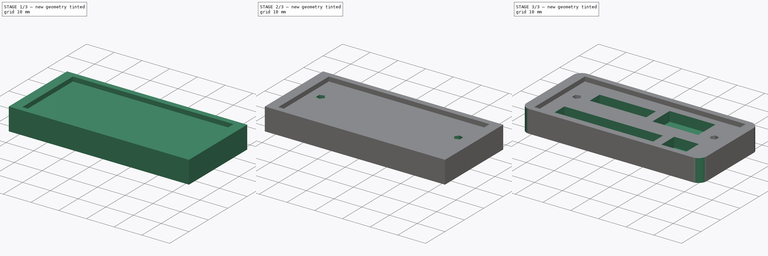
[diagram: build sequence overview — one tinted view per stage of 3, left to right]
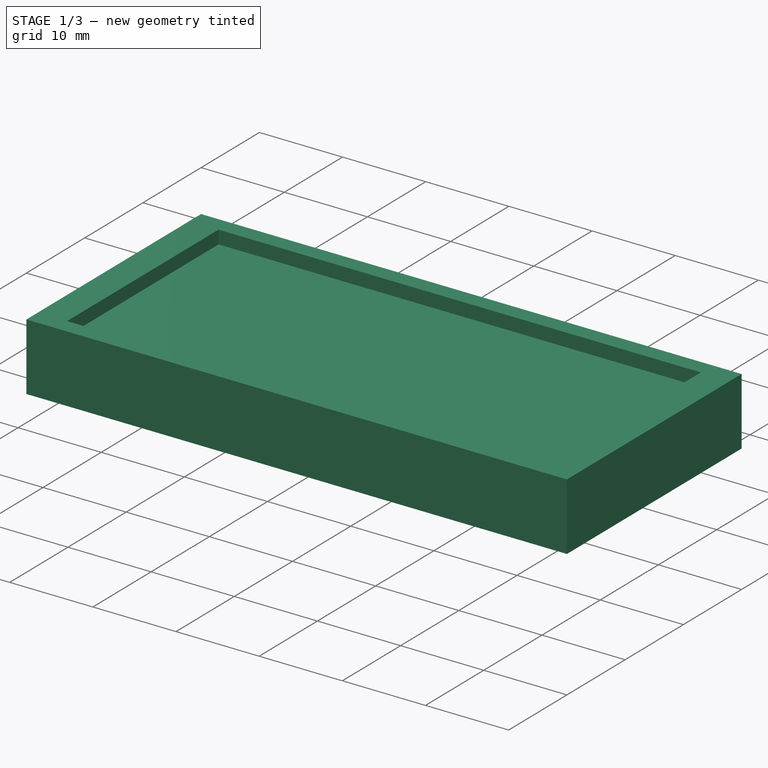
[diagram: stage 1 of 3 — iso view after this stage's code; geometry added in this stage tinted green]
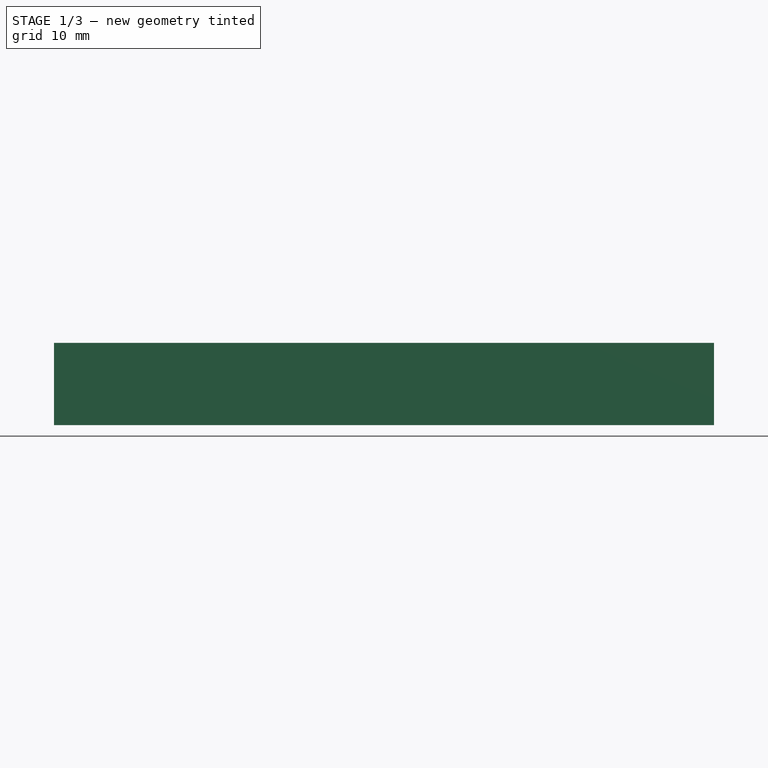
[diagram: stage 1 of 3 — front view after this stage's code; geometry added in this stage tinted green]
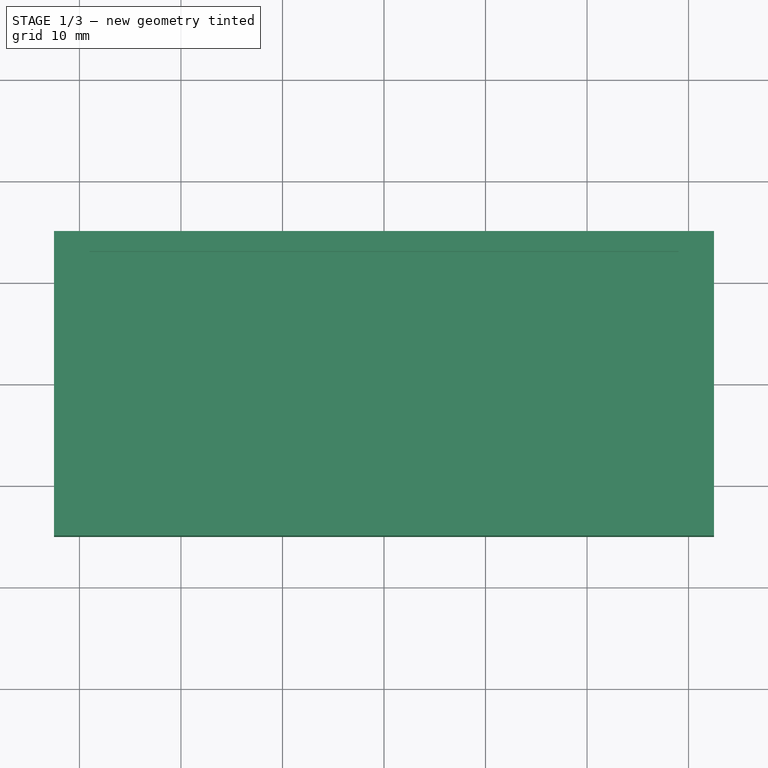
[diagram: stage 1 of 3 — top view after this stage's code; geometry added in this stage tinted green]
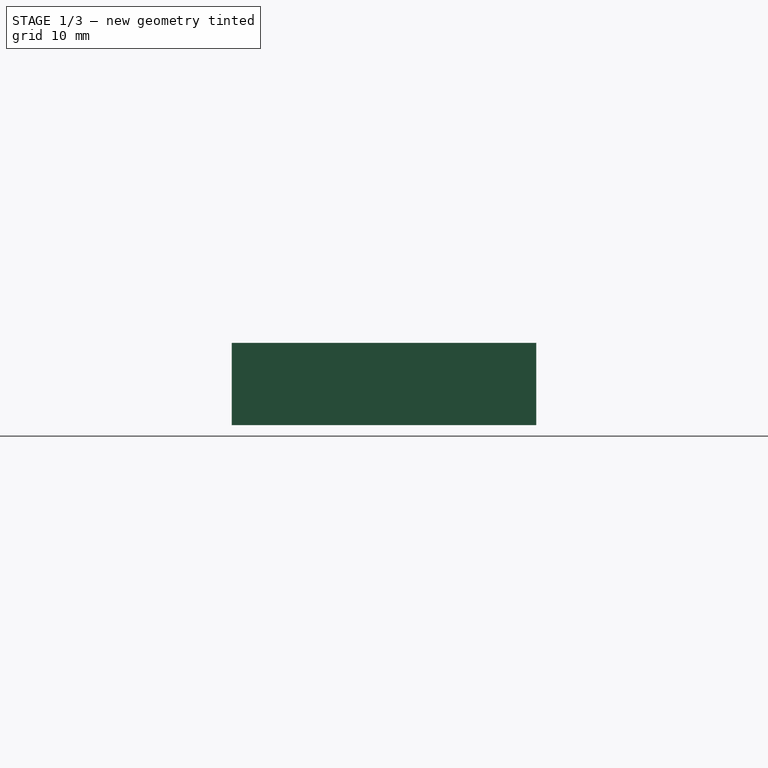
[diagram: stage 1 of 3 — right view after this stage's code; geometry added in this stage tinted green]
FCSTD DOCUMENT  (FreeCAD 0.19R24291 (Git))
Label: case
License: All rights reserved
LicenseURL: http://en.wikipedia.org/wiki/All_rights_reserved
objects: Sketcher::SketchObject×4, PartDesign::Pocket×3, PartDesign::Plane×2, PartDesign::Pad×1, Spreadsheet::Sheet×1, PartDesign::Fillet×1, PartDesign::Body×1
note: 17 computed .brp shape members not serialized (recipe doc carries the construction recipe); baked Part::Feature solids carry a one-line shape summary decoded from their .brp

FEATURE [Sketcher::SketchObject] Sketch  label="Outer_S"
  FullyConstrained = true
  MapMode = 5
  Support = -> [XY_Plane]
  sketch-geometry (4):
    g0: LineSegment StartX=-32.5 StartY=15 StartZ=0 EndX=32.5 EndY=15 EndZ=0
    g1: LineSegment StartX=32.5 StartY=15 StartZ=0 EndX=32.5 EndY=-15 EndZ=0
    g2: LineSegment StartX=32.5 StartY=-15 StartZ=0 EndX=-32.5 EndY=-15 EndZ=0
    g3: LineSegment StartX=-32.5 StartY=-15 StartZ=0 EndX=-32.5 EndY=15 EndZ=0
  constraints (10):
    c: Coincident(g0,g1)
    c: Coincident(g1,g2)
    c: Coincident(g2,g3)
    c: Coincident(g3,g0)
    c: Horizontal(g0)
    c: Vertical(g1)
    c: DistanceX(g0,g0) = 65  'width'
    c: DistanceY(g1,g1) = 30  'height'
    c: Symmetric(g2,g1,g-2)
    c: Symmetric(g0,g2,g-1)
FEATURE [PartDesign::Pad] Pad  label="Outer"
  Direction = (1,1,1)
  Length = 8.1
  Length2 = 100
  Profile = -> Sketch
  Type = 0
  expr: Length = <<dimensions>>.max_z_clearance + <<dimensions>>.pcb_thickness + 1mm
FEATURE [PartDesign::Plane] DatumPlane  label="OuterTop"
  AttachmentOffset = pos=(0,0,8.1) rot=(0,0,1;0rad)
  Length = 60
  MapMode = 5
  Placement = pos=(0,0,8.1) rot=(0,0,1;0rad)
  ResizeMode = 0
  Support = -> [XY_Plane]
  Width = 60
  expr: .AttachmentOffset.Base.z = <<Outer>>.Length
FEATURE [Sketcher::SketchObject] Sketch001  label="PcbPocket_S"
  FullyConstrained = true
  MapMode = 5
  Placement = pos=(0,0,8.1) rot=(0,0,1;0rad)
  Support = -> [DatumPlane]
  sketch-geometry (4):
    g0: LineSegment StartX=-29 StartY=13 StartZ=0 EndX=29 EndY=13 EndZ=0
    g1: LineSegment StartX=29 StartY=13 StartZ=0 EndX=29 EndY=-13 EndZ=0
    g2: LineSegment StartX=29 StartY=-13 StartZ=0 EndX=-29 EndY=-13 EndZ=0
    g3: LineSegment StartX=-29 StartY=-13 StartZ=0 EndX=-29 EndY=13 EndZ=0
  constraints (10):
    c: Coincident(g0,g1)
    c: Coincident(g1,g2)
    c: Coincident(g2,g3)
    c: Coincident(g3,g0)
    c: Horizontal(g0)
    c: Vertical(g1)
    c: Symmetric(g2,g1,g-2)
    c: Symmetric(g0,g2,g-1)
    c: DistanceX(g0,g0) = 58  'width'
    c: DistanceY(g1,g1) = 26  'height'
FEATURE [PartDesign::Pocket] Pocket  label="PcbPocket"
  BaseFeature = -> Pad
  Length = 1.6
  Length2 = 100
  Profile = -> Sketch001
  Type = 0
  expr: Length = <<dimensions>>.pcb_thickness
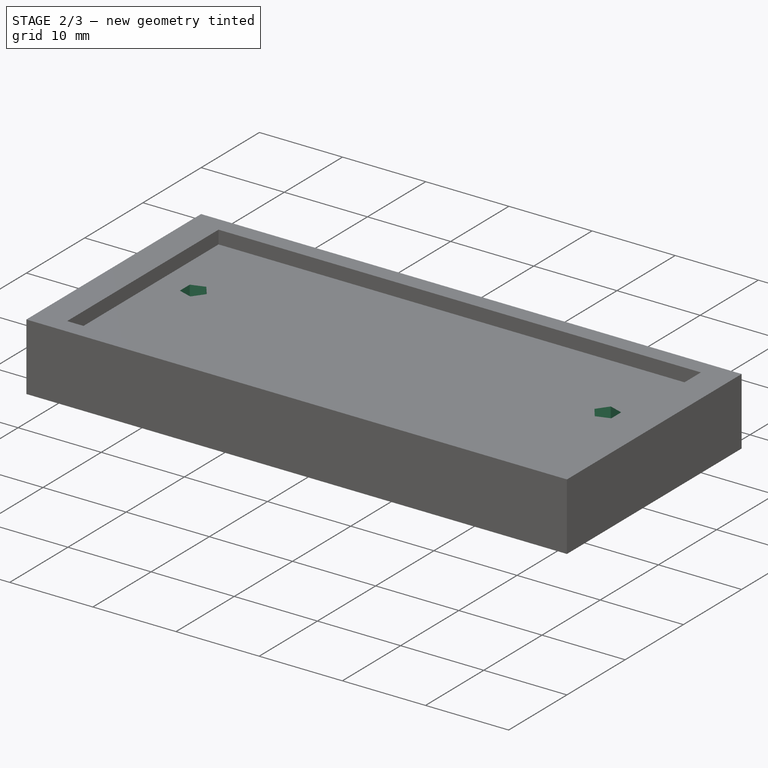
[diagram: stage 2 of 3 — iso view after this stage's code; geometry added in this stage tinted green]
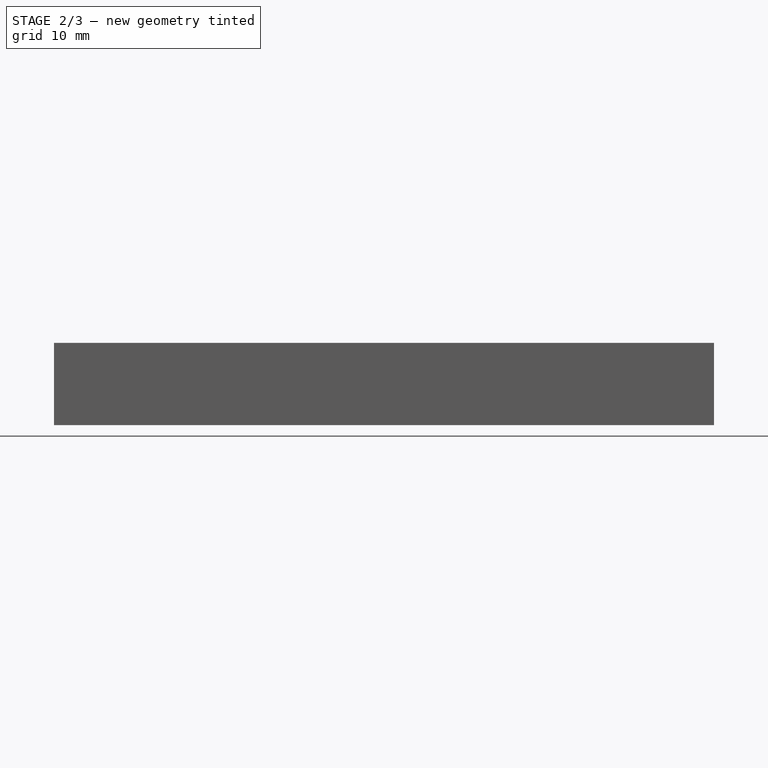
[diagram: stage 2 of 3 — front view after this stage's code; geometry added in this stage tinted green]
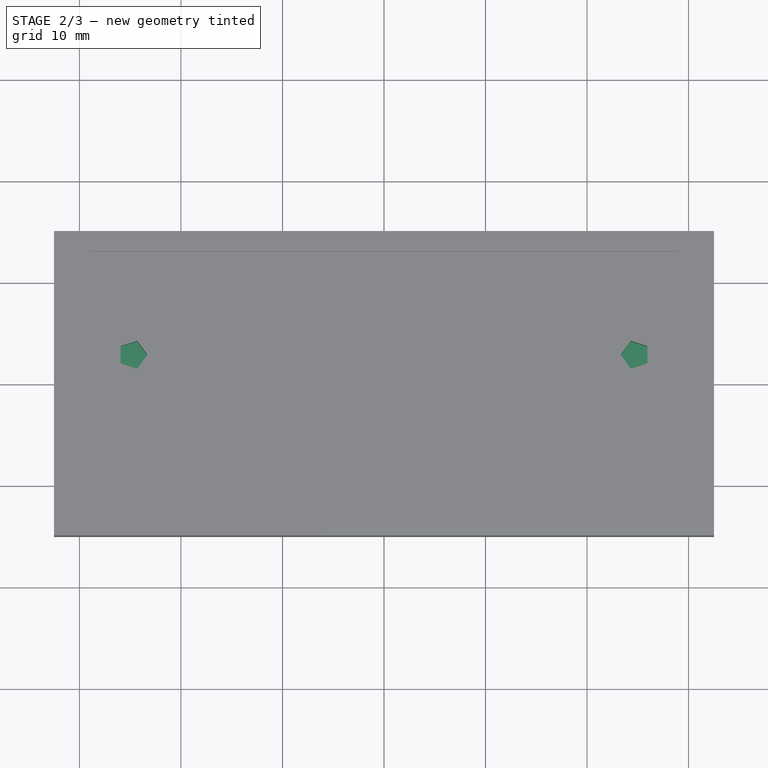
[diagram: stage 2 of 3 — top view after this stage's code; geometry added in this stage tinted green]
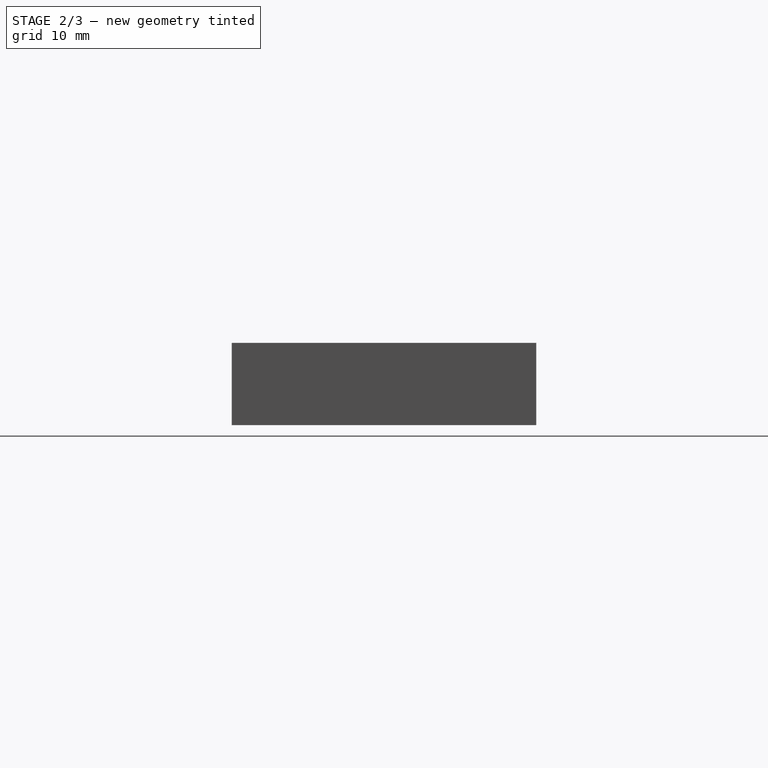
[diagram: stage 2 of 3 — right view after this stage's code; geometry added in this stage tinted green]
FEATURE [Sketcher::SketchObject] Sketch002  label="ScrewHoles_S"
  FullyConstrained = true
  MapMode = 5
  Placement = pos=(0,0,8.1) rot=(0,0,1;0rad)
  Support = -> [DatumPlane]
  expr: .Constraints.offset_y = <<PcbPocket_S>>.Constraints.height / 2 - 10.16mm
  sketch-geometry (14):
    g0: LineSegment StartX=-24.765 StartY=2.84 StartZ=0 EndX=24.765 EndY=2.84 EndZ=0
    g1: LineSegment StartX=0 StartY=2.84 StartZ=0 EndX=0 EndY=0 EndZ=0
    g2: LineSegment StartX=-23.315 StartY=2.84 StartZ=0 EndX=-24.3169 EndY=4.21903 EndZ=0
    g3: LineSegment StartX=-24.3169 StartY=4.21903 StartZ=0 EndX=-25.9381 EndY=3.69229 EndZ=0
    g4: LineSegment StartX=-25.9381 StartY=3.69229 StartZ=0 EndX=-25.9381 EndY=1.98771 EndZ=0
    g5: LineSegment StartX=-25.9381 StartY=1.98771 StartZ=0 EndX=-24.3169 EndY=1.46097 EndZ=0
    g6: LineSegment StartX=-24.3169 StartY=1.46097 StartZ=0 EndX=-23.315 EndY=2.84 EndZ=0
    g7: Circle CenterX=-24.765 CenterY=2.84 CenterZ=0 NormalX=0 NormalY=0 NormalZ=1 AngleXU=0 Radius=1.45
    g8: LineSegment StartX=23.315 StartY=2.84 StartZ=0 EndX=24.3169 EndY=1.46097 EndZ=0
    g9: LineSegment StartX=24.3169 StartY=1.46097 StartZ=0 EndX=25.9381 EndY=1.98771 EndZ=0
    g10: LineSegment StartX=25.9381 StartY=1.98771 StartZ=0 EndX=25.9381 EndY=3.69229 EndZ=0
    g11: LineSegment StartX=25.9381 StartY=3.69229 StartZ=0 EndX=24.3169 EndY=4.21903 EndZ=0
    g12: LineSegment StartX=24.3169 StartY=4.21903 StartZ=0 EndX=23.315 EndY=2.84 EndZ=0
    g13: Circle CenterX=24.765 CenterY=2.84 CenterZ=0 NormalX=0 NormalY=0 NormalZ=1 AngleXU=0 Radius=1.45
  constraints (34):
    c: Symmetric(g0,g0,g-2)
    c: DistanceX(g0,g0) = 49.53  'centres_x'
    c: Coincident(g1,g-1)
    c: Vertical(g1)
    c: DistanceY(g1,g1) = 2.84  'offset_y'
    c: PointOnObject(g1,g0)
    c: Coincident(g2,g3)
    c: Coincident(g3,g4)
    c: Coincident(g4,g5)
    c: Coincident(g5,g6)
    c: Coincident(g6,g2)
    c: Equal(g2, g3-g6) x4
    c: PointOnObject(g2,g7)
    c: PointOnObject(g3,g7)
    c: PointOnObject(g4,g7)
    c: PointOnObject(g5,g7)
    c: PointOnObject(g6,g7)
    c: Coincident(g7,g0)
    c: PointOnObject(g6,g0)
    c: Coincident(g8,g9)
    c: Coincident(g9,g10)
    c: Coincident(g10,g11)
    c: Coincident(g11,g12)
    c: Coincident(g12,g8)
    c: Equal(g8, g9-g12) x4
    c: PointOnObject(g8,g13)
    c: PointOnObject(g9,g13)
    c: PointOnObject(g10,g13)
    c: PointOnObject(g11,g13)
    c: PointOnObject(g12,g13)
    c: Coincident(g13,g0)
    c: PointOnObject(g12,g0)
    c: Equal(g13,g7)
    c: Diameter(g13) = 2.9  'diameter'
FEATURE [PartDesign::Pocket] Pocket001  label="ScrewHoles"
  BaseFeature = -> Pocket
  Length = 5.5
  Length2 = 100
  Profile = -> Sketch002
  Type = 0
  expr: Length = <<dimensions>>.screw_z_clearance
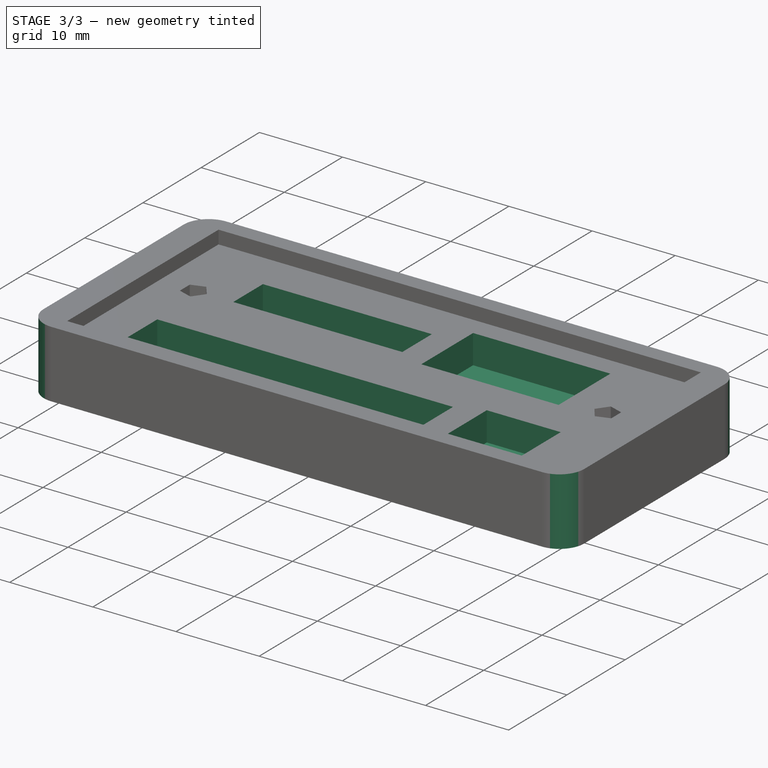
[diagram: stage 3 of 3 — iso view after this stage's code; geometry added in this stage tinted green]
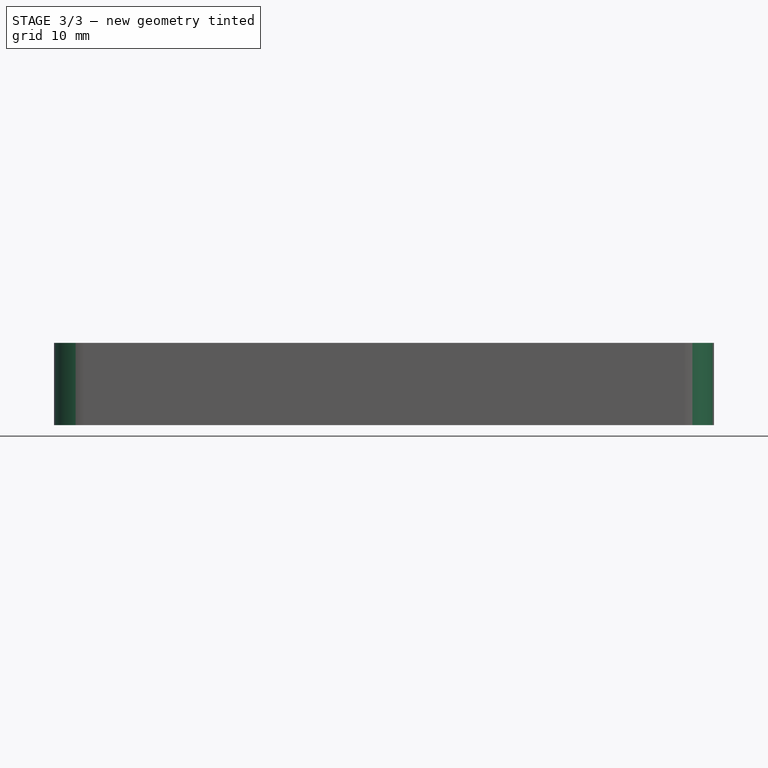
[diagram: stage 3 of 3 — front view after this stage's code; geometry added in this stage tinted green]
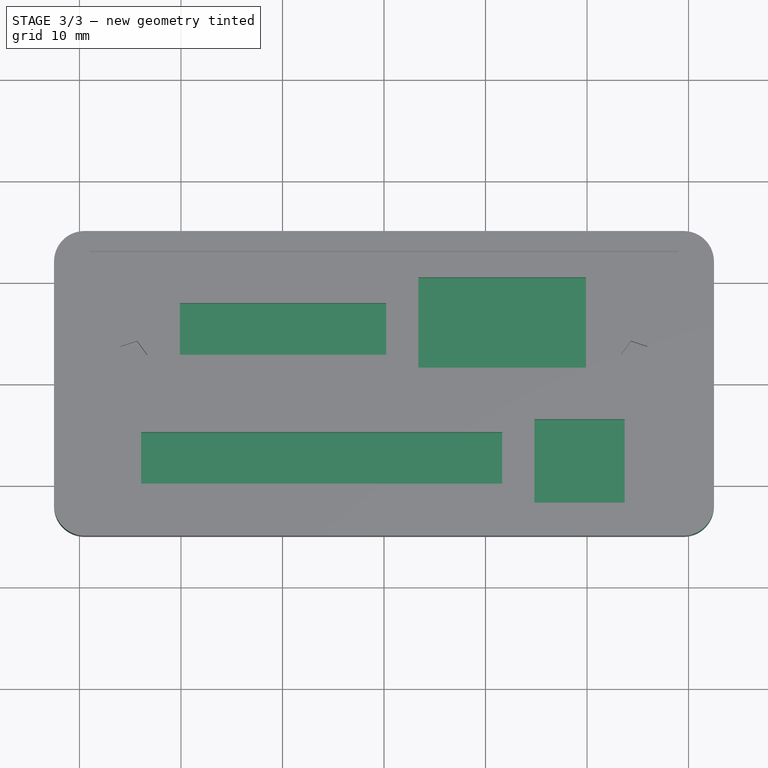
[diagram: stage 3 of 3 — top view after this stage's code; geometry added in this stage tinted green]
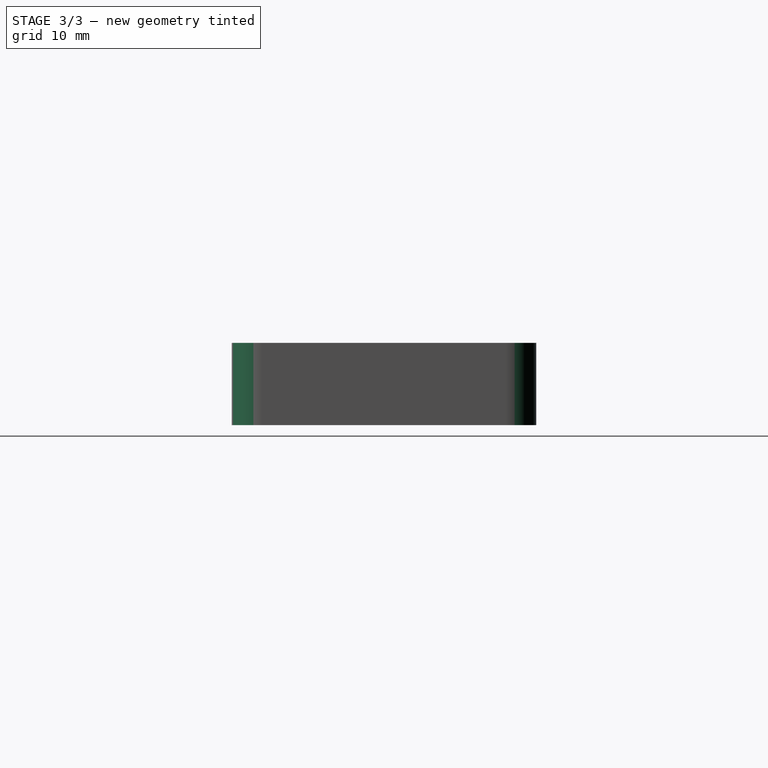
[diagram: stage 3 of 3 — right view after this stage's code; geometry added in this stage tinted green]
FEATURE [Spreadsheet::Sheet] Spreadsheet  label="dimensions"
  cells = A1=Pin clearance; B1(pin_z_clearance)==3.5mm; A2=Screw clearance; B2(screw_z_clearance)==5.5mm; B3(max_z_clearance)==max(B1; B2); A5=PCB thickness; B5(pcb_thickness)==1.6mm
FEATURE [PartDesign::Plane] DatumPlane001  label="PcbHeight"
  AttachmentOffset = pos=(0,0,6.5) rot=(0,0,1;0rad)
  Length = 60
  MapMode = 5
  Placement = pos=(0,0,6.5) rot=(0,0,1;0rad)
  ResizeMode = 0
  Support = -> [XY_Plane]
  Width = 60
  expr: .AttachmentOffset.Base.z = <<Outer>>.Length - <<dimensions>>.pcb_thickness
FEATURE [Sketcher::SketchObject] Sketch003  label="PinRecess_S"
  FullyConstrained = true
  MapMode = 5
  Placement = pos=(0,0,6.5) rot=(0,0,1;0rad)
  Support = -> [DatumPlane001]
  expr: .Constraints.width = Sketch001.Constraints[8]
  expr: .Constraints.height = Sketch001.Constraints[9]
  sketch-geometry (20):
    g0: LineSegment StartX=-20.11 StartY=7.92 StartZ=0 EndX=0.21 EndY=7.92 EndZ=0
    g1: LineSegment StartX=0.21 StartY=7.92 StartZ=0 EndX=0.21 EndY=2.84 EndZ=0
    g2: LineSegment StartX=0.21 StartY=2.84 StartZ=0 EndX=-20.11 EndY=2.84 EndZ=0
    g3: LineSegment StartX=-20.11 StartY=2.84 StartZ=0 EndX=-20.11 EndY=7.92 EndZ=0
    g4: LineSegment StartX=3.385 StartY=10.46 StartZ=0 EndX=19.895 EndY=10.46 EndZ=0
    g5: LineSegment StartX=19.895 StartY=10.46 StartZ=0 EndX=19.895 EndY=1.57 EndZ=0
    g6: LineSegment StartX=19.895 StartY=1.57 StartZ=0 EndX=3.385 EndY=1.57 EndZ=0
    g7: LineSegment StartX=3.385 StartY=1.57 StartZ=0 EndX=3.385 EndY=10.46 EndZ=0
    g8: LineSegment StartX=14.815 StartY=-3.51 StartZ=0 EndX=23.705 EndY=-3.51 EndZ=0
    g9: LineSegment StartX=23.705 StartY=-3.51 StartZ=0 EndX=23.705 EndY=-11.735 EndZ=0
    g10: LineSegment StartX=23.705 StartY=-11.735 StartZ=0 EndX=14.815 EndY=-11.735 EndZ=0
    g11: LineSegment StartX=14.815 StartY=-11.735 StartZ=0 EndX=14.815 EndY=-3.51 EndZ=0
    g12: LineSegment StartX=-23.92 StartY=-4.78 StartZ=0 EndX=11.64 EndY=-4.78 EndZ=0
    g13: LineSegment StartX=11.64 StartY=-4.78 StartZ=0 EndX=11.64 EndY=-9.86 EndZ=0
    g14: LineSegment StartX=11.64 StartY=-9.86 StartZ=0 EndX=-23.92 EndY=-9.86 EndZ=0
    g15: LineSegment StartX=-23.92 StartY=-9.86 StartZ=0 EndX=-23.92 EndY=-4.78 EndZ=0
    g16: LineSegment StartX=-29 StartY=13 StartZ=0 EndX=29 EndY=13 EndZ=0
    g17: LineSegment StartX=29 StartY=13 StartZ=0 EndX=29 EndY=-13 EndZ=0
    g18: LineSegment StartX=29 StartY=-13 StartZ=0 EndX=-29 EndY=-13 EndZ=0
    g19: LineSegment StartX=-29 StartY=-13 StartZ=0 EndX=-29 EndY=13 EndZ=0
  constraints (58):
    c: Coincident(g0,g1)
    c: Coincident(g1,g2)
    c: Coincident(g2,g3)
    c: Coincident(g3,g0)
    c: Horizontal(g0)
    c: Horizontal(g2)
    c: Vertical(g1)
    c: Vertical(g3)
    c: Coincident(g4,g5)
    c: Coincident(g5,g6)
    c: Coincident(g6,g7)
    c: Coincident(g7,g4)
    c: Horizontal(g4)
    c: Horizontal(g6)
    c: Vertical(g5)
    c: Vertical(g7)
    c: Coincident(g8,g9)
    c: Coincident(g9,g10)
    c: Coincident(g10,g11)
    c: Coincident(g11,g8)
    c: Horizontal(g8)
    c: Horizontal(g10)
    c: Vertical(g9)
    c: Vertical(g11)
    c: Coincident(g12,g13)
    c: Coincident(g13,g14)
    c: Coincident(g14,g15)
    c: Coincident(g15,g12)
    c: Horizontal(g12)
    c: Horizontal(g14)
    c: Vertical(g13)
    c: Vertical(g15)
    c: DistanceX(g0,g0) = 20.32
    c: DistanceY(g1,g1) = 5.08
    c: DistanceX(g4,g4) = 16.51
    c: DistanceY(g5,g5) = 8.89
    c: DistanceX(g8,g8) = 8.89
    c: DistanceY(g9,g9) = 8.225
    c: DistanceX(g12,g12) = 35.56
    c: DistanceY(g13,g13) = 5.08
    c: Coincident(g16,g17)
    c: Coincident(g17,g18)
    c: Coincident(g18,g19)
    c: Coincident(g19,g16)
    c: Horizontal(g16)
    c: Vertical(g17)
    c: Symmetric(g18,g17,g-2)
    c: Symmetric(g16,g18,g-1)
    c: DistanceX(g16,g16) = 58  'width'
    c: DistanceY(g17,g17) = 26  'height'
    c: DistanceX(g16,g0) = 8.89
    c: DistanceX(g16,g4) = 32.385
    c: DistanceY(g0,g16) = 5.08
    c: DistanceY(g4,g16) = 2.54
    c: DistanceX(g18,g14) = 5.08
    c: DistanceX(g18,g10) = 43.815
    c: DistanceY(g8,g16) = 16.51
    c: DistanceY(g12,g16) = 17.78
FEATURE [PartDesign::Pocket] Pocket002  label="PinRecess"
  BaseFeature = -> Pocket001
  Length = 3.5
  Length2 = 100
  Profile = -> Sketch003
  Type = 0
  expr: Length = <<dimensions>>.pin_z_clearance
FEATURE [PartDesign::Fillet] Fillet  label="CornerFillet"
  Base = -> Pocket002 [Edge5,Edge8,Edge2,Edge1]
  BaseFeature = -> Pocket002
  Radius = 3
  SupportTransform = false
FEATURE [PartDesign::Body] Body
  Group = -> [Sketch,Pad,DatumPlane,Sketch001,Pocket,Sketch002,Pocket001,DatumPlane001,Sketch003,Pocket002,Fillet]
  Origin = -> Origin
  Tip = -> Fillet
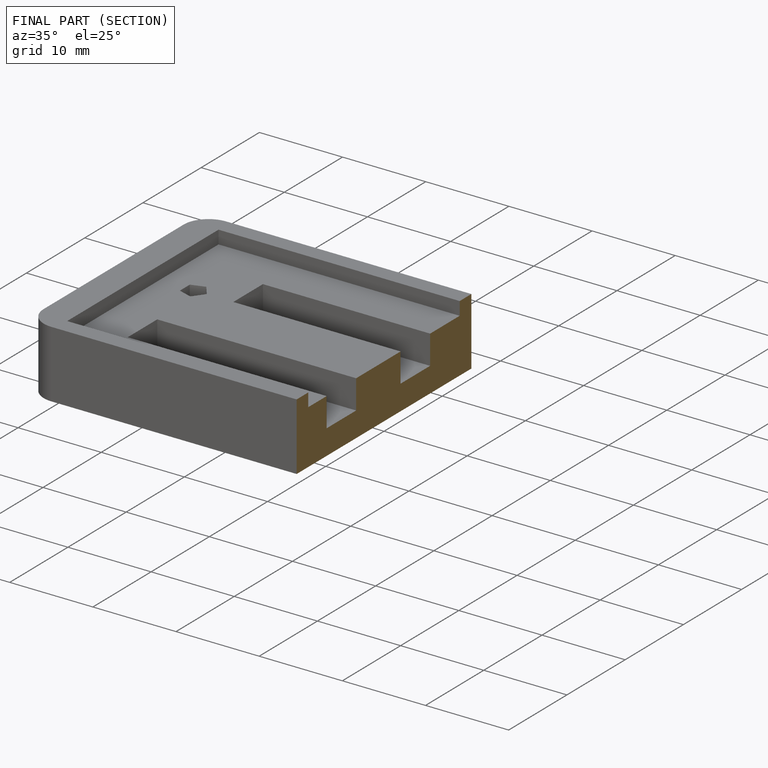
[diagram: finished part — half-section view (interior)]
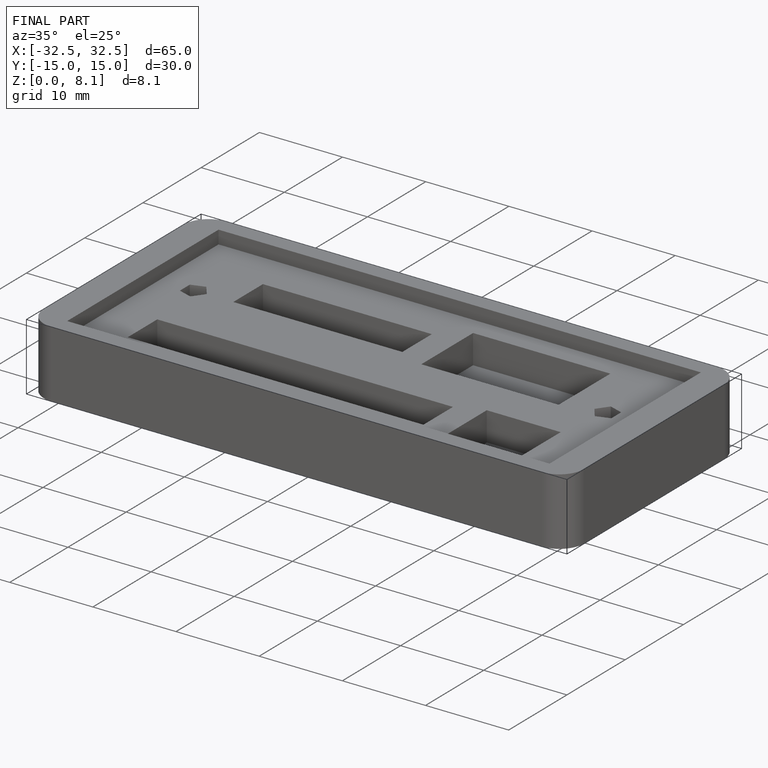
[diagram: finished part — iso view with bounding-box wireframe]
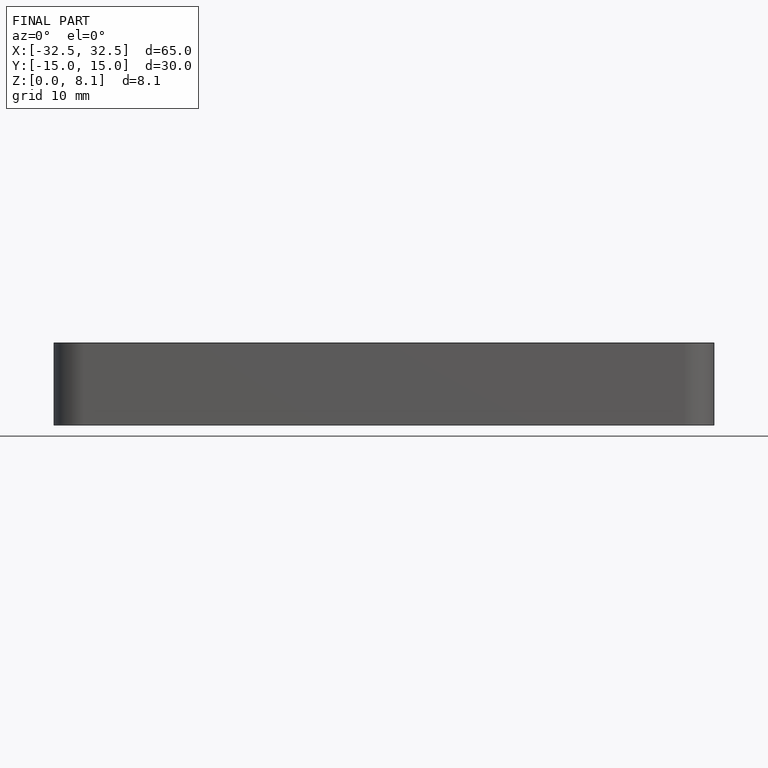
[diagram: finished part — front view with bounding-box wireframe]
